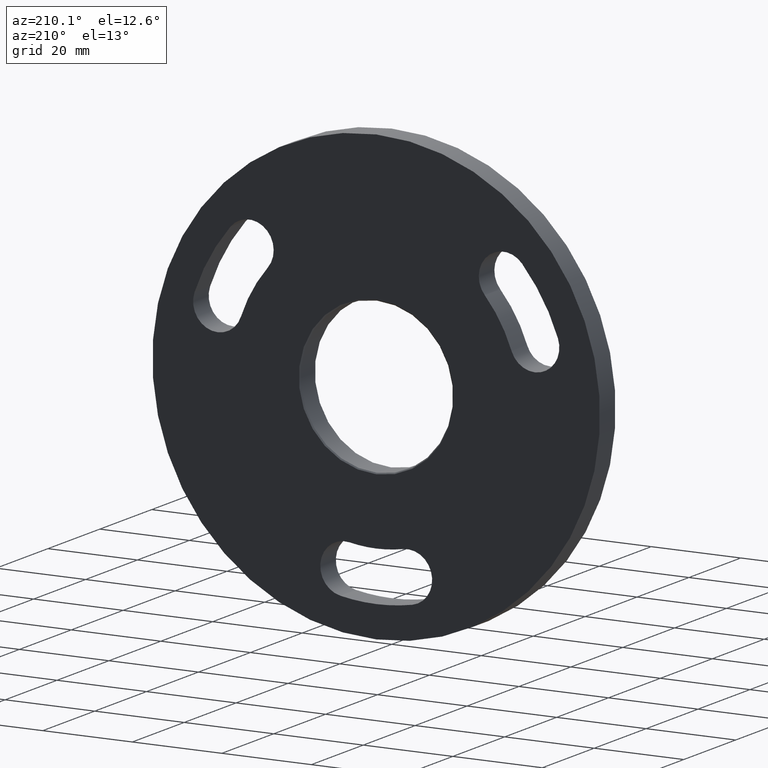
[diagram: clean part render]
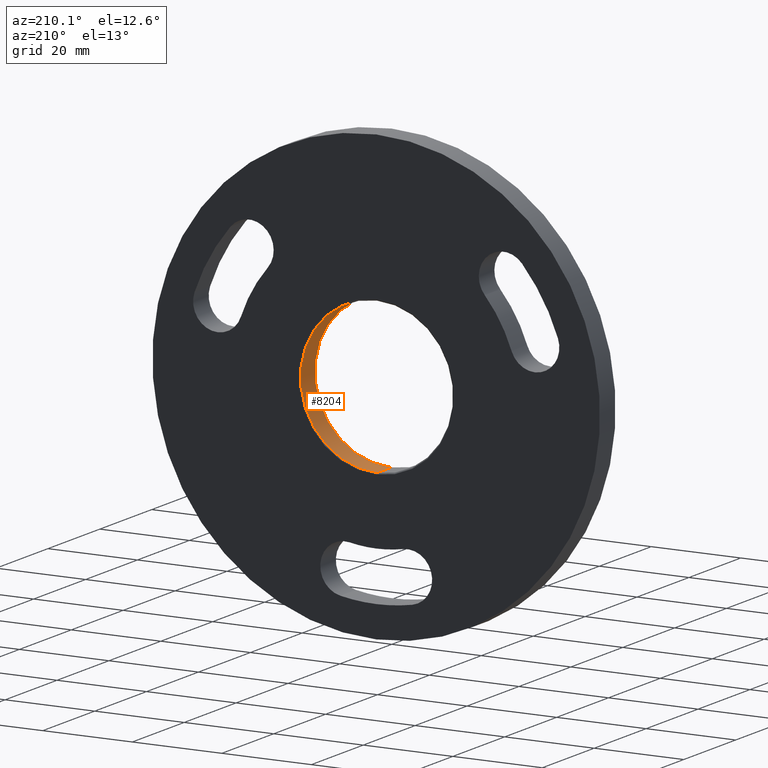
[diagram: same view with one face highlighted and labeled with its STEP entity id]
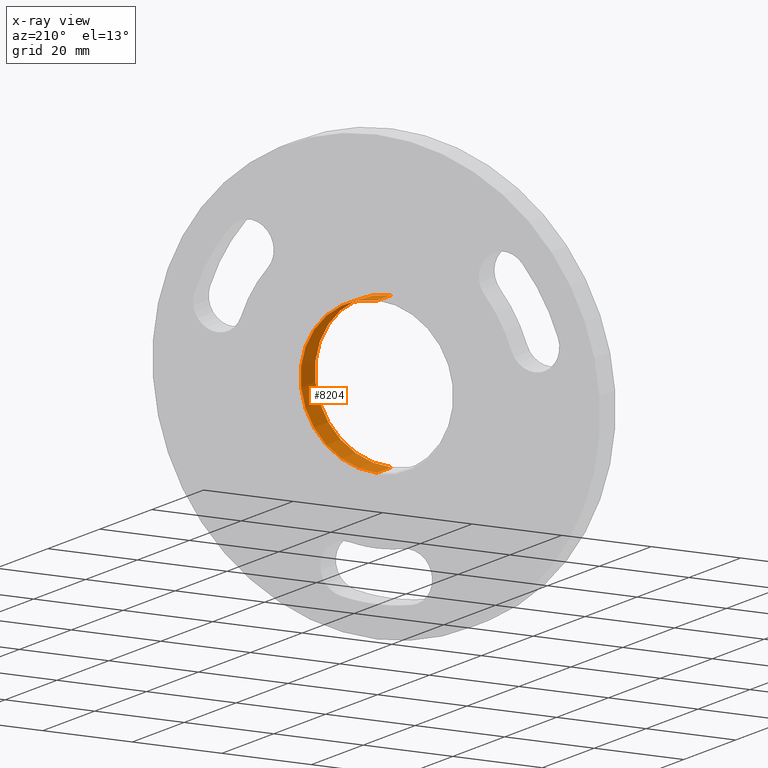
[diagram: x-ray of the same camera — body ghosted, the highlighted face saturated]
A machine part, auxiliary view. The second image highlights one B-rep face of the part: STEP entity #8204.
The next image is the same camera in x-ray: the body ghosted, the highlighted face saturated — about 0% of this face is hidden behind the body in this view.
In plain terms, the highlighted cylindrical surface (partial cylindrical patch) has radius 17.05 mm, axis along (-0, 1, -0).
Its self-contained STEP definition (entity closure, byte-faithful):
#216 = CARTESIAN_POINT ( 'NONE',  ( 2.088022792546237353E-15, 0.000000000000000000, -17.05000000000000071 ) ) ;
#283 = ORIENTED_EDGE ( 'NONE', *, *, #2641, .T. ) ;
#473 = DIRECTION ( 'NONE',  ( 0.000000000000000000, 0.000000000000000000, 1.000000000000000000 ) ) ;
#1422 = CARTESIAN_POINT ( 'NONE',  ( 0.000000000000000000, 0.000000000000000000, 17.05000000000000071 ) ) ;
#1806 = CYLINDRICAL_SURFACE ( 'NONE', #3740, 17.05000000000000071 ) ;
#2018 = LINE ( 'NONE', #1422, #11506 ) ;
#2419 = CIRCLE ( 'NONE', #8162, 17.05000000000000071 ) ;
#2492 = DIRECTION ( 'NONE',  ( 0.000000000000000000, 0.000000000000000000, 1.000000000000000000 ) ) ;
#2586 = FACE_OUTER_BOUND ( 'NONE', #10640, .T. ) ;
#2641 = EDGE_CURVE ( 'NONE', #8009, #4476, #12524, .T. ) ;
#2986 = LINE ( 'NONE', #216, #10750 ) ;
#3134 = EDGE_CURVE ( 'NONE', #8009, #12620, #2986, .T. ) ;
#3158 = DIRECTION ( 'NONE',  ( 0.000000000000000000, 1.000000000000000000, 0.000000000000000000 ) ) ;
#3516 = CARTESIAN_POINT ( 'NONE',  ( 2.088022792546237353E-15, 5.749999999999972466, -17.05000000000000071 ) ) ;
#3704 = CARTESIAN_POINT ( 'NONE',  ( 0.000000000000000000, 5.749999999999972466, 17.05000000000000071 ) ) ;
#3740 = AXIS2_PLACEMENT_3D ( 'NONE', #7737, #11620, #473 ) ;
#4476 = VERTEX_POINT ( 'NONE', #5356 ) ;
#5356 = CARTESIAN_POINT ( 'NONE',  ( 0.000000000000000000, 0.2500000000000140998, 17.05000000000000071 ) ) ;
#6504 = DIRECTION ( 'NONE',  ( -0.000000000000000000, -1.000000000000000000, -0.000000000000000000 ) ) ;
#7273 = DIRECTION ( 'NONE',  ( -0.000000000000000000, 1.000000000000000000, -0.000000000000000000 ) ) ;
#7737 = CARTESIAN_POINT ( 'NONE',  ( 0.000000000000000000, 0.000000000000000000, 0.000000000000000000 ) ) ;
#8009 = VERTEX_POINT ( 'NONE', #10977 ) ;
#8153 = ORIENTED_EDGE ( 'NONE', *, *, #10120, .T. ) ;
#8162 = AXIS2_PLACEMENT_3D ( 'NONE', #9187, #3158, #10370 ) ;
#8204 = ADVANCED_FACE ( 'NONE', ( #2586 ), #1806, .F. ) ;
#8649 = EDGE_CURVE ( 'NONE', #11042, #12620, #2419, .T. ) ;
#8915 = ORIENTED_EDGE ( 'NONE', *, *, #3134, .F. ) ;
#9187 = CARTESIAN_POINT ( 'NONE',  ( 0.000000000000000000, 5.749999999999972466, 0.000000000000000000 ) ) ;
#10120 = EDGE_CURVE ( 'NONE', #4476, #11042, #2018, .T. ) ;
#10370 = DIRECTION ( 'NONE',  ( 0.000000000000000000, 0.000000000000000000, 1.000000000000000000 ) ) ;
#10600 = CARTESIAN_POINT ( 'NONE',  ( 0.000000000000000000, 0.2500000000000140998, 0.000000000000000000 ) ) ;
#10640 = EDGE_LOOP ( 'NONE', ( #8915, #283, #8153, #11730 ) ) ;
#10750 = VECTOR ( 'NONE', #7273, 1000.000000000000000 ) ;
#10977 = CARTESIAN_POINT ( 'NONE',  ( 2.088022792546237353E-15, 0.2500000000000140998, -17.05000000000000071 ) ) ;
#11042 = VERTEX_POINT ( 'NONE', #3704 ) ;
#11506 = VECTOR ( 'NONE', #12560, 1000.000000000000000 ) ;
#11620 = DIRECTION ( 'NONE',  ( -0.000000000000000000, 1.000000000000000000, -0.000000000000000000 ) ) ;
#11730 = ORIENTED_EDGE ( 'NONE', *, *, #8649, .T. ) ;
#12387 = AXIS2_PLACEMENT_3D ( 'NONE', #10600, #6504, #2492 ) ;
#12524 = CIRCLE ( 'NONE', #12387, 17.05000000000000071 ) ;
#12560 = DIRECTION ( 'NONE',  ( -0.000000000000000000, 1.000000000000000000, -0.000000000000000000 ) ) ;
#12620 = VERTEX_POINT ( 'NONE', #3516 ) ;